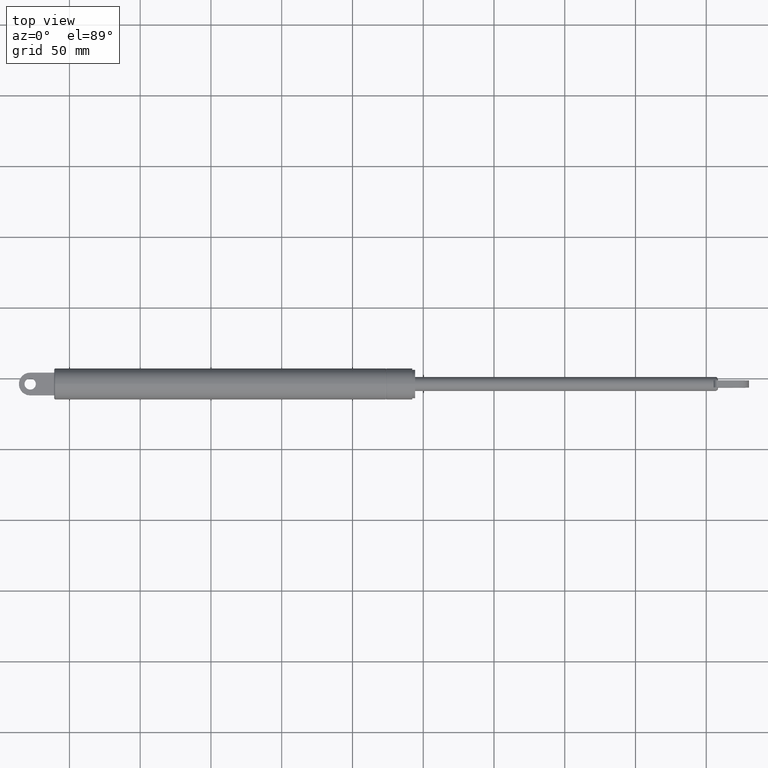
[diagram: clean part render]
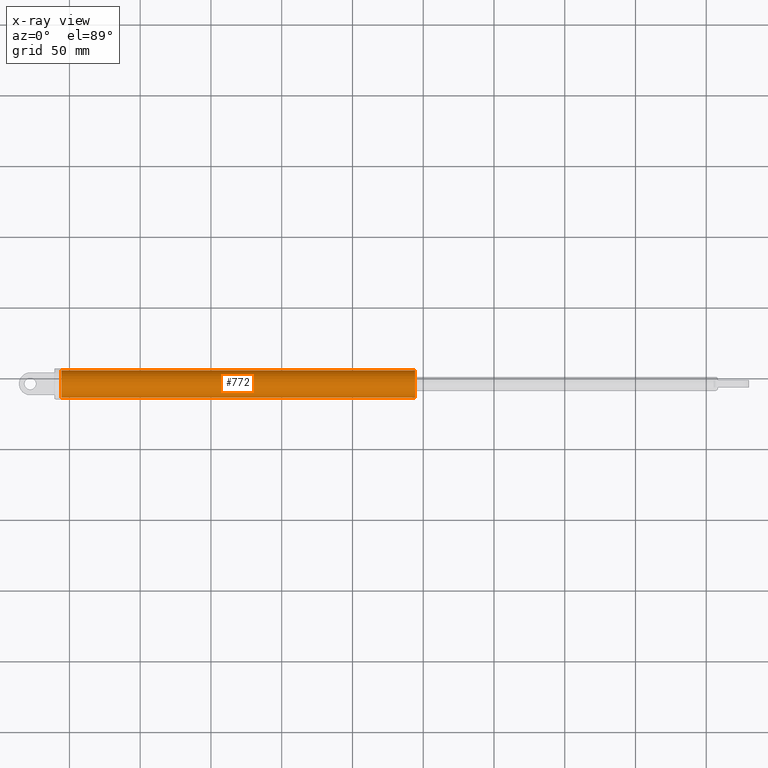
[diagram: x-ray — body ghosted, one internal face saturated and labeled with its STEP entity id]
A machine part, top view, then the same camera in x-ray: the body is ghosted and one INTERNAL B-rep face — a face not visible from any outside direction — is saturated and labeled: STEP entity #772.
In plain terms, the highlighted cylindrical surface (bore or boss wall) has radius 9.5 mm, axis along (1, 0, -0).
Its self-contained STEP definition (entity closure, byte-faithful):
#150=CYLINDRICAL_SURFACE('',#841,9.5);
#175=FACE_BOUND('',#273,.T.);
#208=FACE_OUTER_BOUND('',#272,.T.);
#272=EDGE_LOOP('',(#596));
#273=EDGE_LOOP('',(#597));
#344=CIRCLE('',#842,9.5);
#345=CIRCLE('',#843,9.5);
#402=VERTEX_POINT('',#1246);
#403=VERTEX_POINT('',#1248);
#479=EDGE_CURVE('',#402,#402,#344,.T.);
#480=EDGE_CURVE('',#403,#403,#345,.T.);
#596=ORIENTED_EDGE('',*,*,#479,.F.);
#597=ORIENTED_EDGE('',*,*,#480,.F.);
#772=ADVANCED_FACE('',(#208,#175),#150,.F.);
#841=AXIS2_PLACEMENT_3D('',#1245,#989,#990);
#842=AXIS2_PLACEMENT_3D('',#1247,#991,#992);
#843=AXIS2_PLACEMENT_3D('',#1249,#993,#994);
#989=DIRECTION('center_axis',(1.,0.,-1.22464679914735E-16));
#990=DIRECTION('ref_axis',(0.,1.,0.));
#991=DIRECTION('center_axis',(-1.,0.,1.22464679914735E-16));
#992=DIRECTION('ref_axis',(0.,1.,0.));
#993=DIRECTION('center_axis',(1.,0.,-1.22464679914735E-16));
#994=DIRECTION('ref_axis',(0.,1.,0.));
#1245=CARTESIAN_POINT('Origin',(130.,0.,-1.59204083889156E-14));
#1246=CARTESIAN_POINT('',(255.,9.5,-3.12284933782575E-14));
#1247=CARTESIAN_POINT('Origin',(255.,0.,-3.12284933782575E-14));
#1248=CARTESIAN_POINT('',(5.,9.5,-6.12323399573676E-16));
#1249=CARTESIAN_POINT('Origin',(5.,0.,-6.12323399573676E-16));